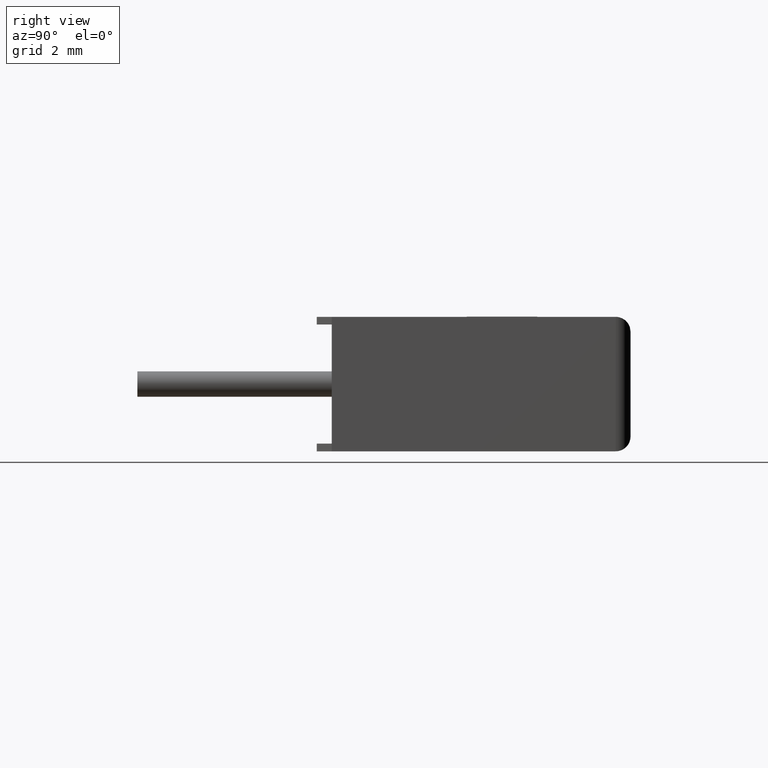
[diagram: clean part render]
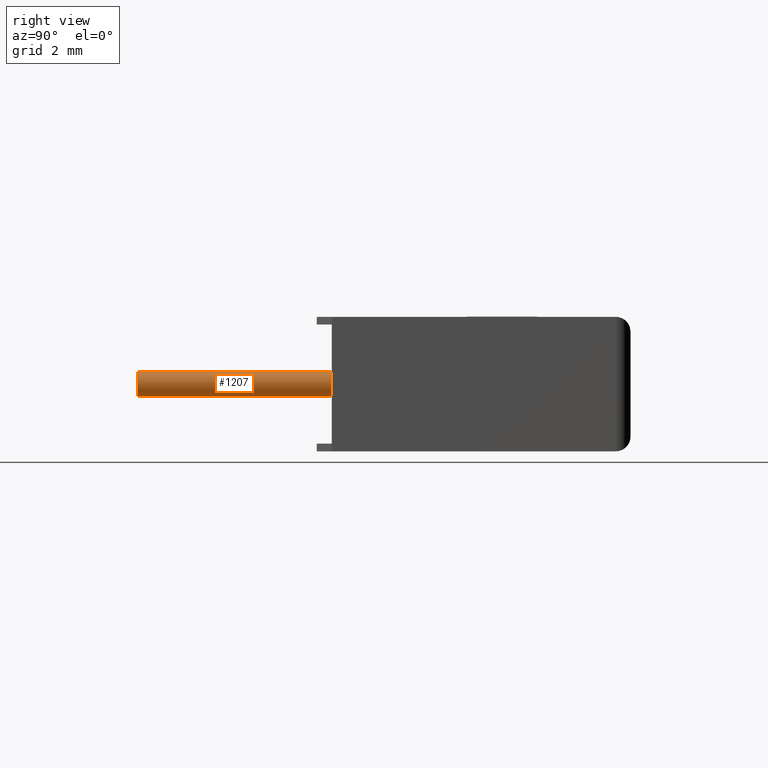
[diagram: same view with one face highlighted and labeled with its STEP entity id]
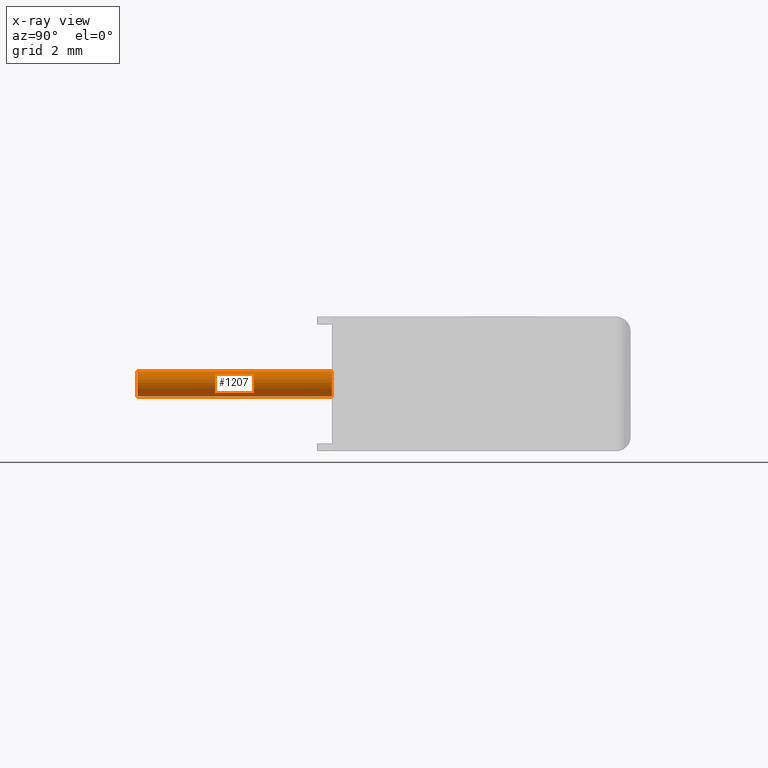
[diagram: x-ray of the same camera — body ghosted, the highlighted face saturated]
A machine part, right view. The second image highlights one B-rep face of the part: STEP entity #1207.
The next image is the same camera in x-ray: the body ghosted, the highlighted face saturated — about 0% of this face is hidden behind the body in this view.
In plain terms, the highlighted cylindrical surface (edge-blend (fillet) strip) has radius 0.425 mm, axis along (-0, 1, -0).
Its self-contained STEP definition (entity closure, byte-faithful):
#38 = CARTESIAN_POINT ( 'NONE',  ( 16.25000000000000000, -6.500000000000000000, 1.825000000000000600 ) ) ;
#73 = ORIENTED_EDGE ( 'NONE', *, *, #999, .F. ) ;
#97 = AXIS2_PLACEMENT_3D ( 'NONE', #2664, #1857, #435 ) ;
#109 = DIRECTION ( 'NONE',  ( 0.0000000000000000000, 0.0000000000000000000, -1.000000000000000000 ) ) ;
#127 = VERTEX_POINT ( 'NONE', #1528 ) ;
#179 = CARTESIAN_POINT ( 'NONE',  ( 16.25000000000000000, -6.500000000000000000, 1.825000000000000600 ) ) ;
#214 = LINE ( 'NONE', #179, #1937 ) ;
#353 = ORIENTED_EDGE ( 'NONE', *, *, #1202, .T. ) ;
#387 = LINE ( 'NONE', #1800, #3178 ) ;
#435 = DIRECTION ( 'NONE',  ( 0.0000000000000000000, 0.0000000000000000000, 1.000000000000000000 ) ) ;
#491 = ORIENTED_EDGE ( 'NONE', *, *, #3215, .T. ) ;
#627 = CARTESIAN_POINT ( 'NONE',  ( 16.25000000000000000, -6.500000000000000000, 2.250000000000000900 ) ) ;
#999 = EDGE_CURVE ( 'NONE', #2347, #127, #387, .T. ) ;
#1155 = CIRCLE ( 'NONE', #2944, 0.4250000000000000400 ) ;
#1176 = CARTESIAN_POINT ( 'NONE',  ( 16.25000000000000000, 0.0000000000000000000, 2.250000000000000900 ) ) ;
#1202 = EDGE_CURVE ( 'NONE', #2347, #2845, #2591, .T. ) ;
#1207 = ADVANCED_FACE ( 'NONE', ( #2954 ), #2271, .T. ) ;
#1528 = CARTESIAN_POINT ( 'NONE',  ( 16.25000000000000000, 0.0000000000000000000, 2.675000000000000700 ) ) ;
#1603 = DIRECTION ( 'NONE',  ( -0.0000000000000000000, 1.000000000000000000, -0.0000000000000000000 ) ) ;
#1761 = VERTEX_POINT ( 'NONE', #2229 ) ;
#1800 = CARTESIAN_POINT ( 'NONE',  ( 16.25000000000000000, -6.500000000000000000, 2.675000000000000700 ) ) ;
#1857 = DIRECTION ( 'NONE',  ( -0.0000000000000000000, 1.000000000000000000, -0.0000000000000000000 ) ) ;
#1937 = VECTOR ( 'NONE', #2191, 1000.000000000000000 ) ;
#2027 = CARTESIAN_POINT ( 'NONE',  ( 16.25000000000000000, -6.500000000000000000, 2.675000000000000700 ) ) ;
#2191 = DIRECTION ( 'NONE',  ( -0.0000000000000000000, 1.000000000000000000, -0.0000000000000000000 ) ) ;
#2229 = CARTESIAN_POINT ( 'NONE',  ( 16.25000000000000000, 0.0000000000000000000, 1.825000000000000600 ) ) ;
#2271 = CYLINDRICAL_SURFACE ( 'NONE', #97, 0.4250000000000000400 ) ;
#2347 = VERTEX_POINT ( 'NONE', #2027 ) ;
#2380 = AXIS2_PLACEMENT_3D ( 'NONE', #627, #1603, #109 ) ;
#2513 = EDGE_LOOP ( 'NONE', ( #353, #491, #2844, #73 ) ) ;
#2591 = CIRCLE ( 'NONE', #2380, 0.4250000000000000400 ) ;
#2611 = DIRECTION ( 'NONE',  ( -0.0000000000000000000, 1.000000000000000000, -0.0000000000000000000 ) ) ;
#2664 = CARTESIAN_POINT ( 'NONE',  ( 16.25000000000000000, -6.500000000000000000, 2.250000000000000900 ) ) ;
#2697 = DIRECTION ( 'NONE',  ( -0.0000000000000000000, 1.000000000000000000, -0.0000000000000000000 ) ) ;
#2844 = ORIENTED_EDGE ( 'NONE', *, *, #3158, .F. ) ;
#2845 = VERTEX_POINT ( 'NONE', #38 ) ;
#2944 = AXIS2_PLACEMENT_3D ( 'NONE', #1176, #2697, #3166 ) ;
#2954 = FACE_OUTER_BOUND ( 'NONE', #2513, .T. ) ;
#3158 = EDGE_CURVE ( 'NONE', #127, #1761, #1155, .T. ) ;
#3166 = DIRECTION ( 'NONE',  ( 0.0000000000000000000, 0.0000000000000000000, -1.000000000000000000 ) ) ;
#3178 = VECTOR ( 'NONE', #2611, 1000.000000000000000 ) ;
#3215 = EDGE_CURVE ( 'NONE', #2845, #1761, #214, .T. ) ;